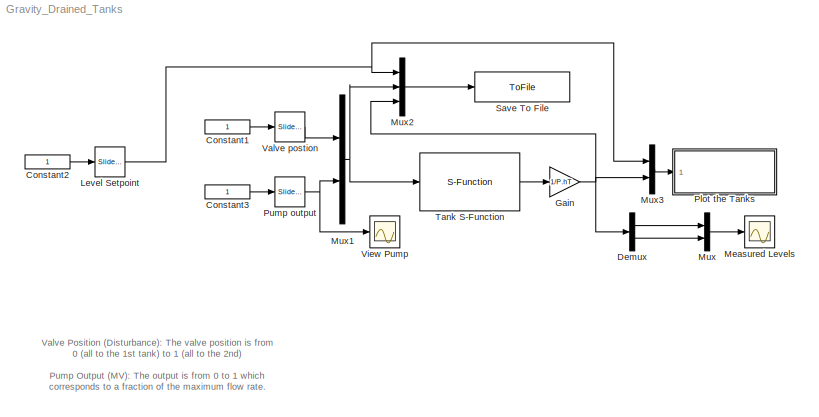
MODEL Gravity_Drained_Tanks
KIND model
CONFIG PreLoadFcn = Initialize
CONFIG StopFcn = Plot_and_save
BLOCK [Constant] Constant1
  SID = 27
BLOCK [Constant] Constant2
  SID = 30
BLOCK [Constant] Constant3
  SID = 3
BLOCK [Demux] Demux
  DisplayOption = bar
  Outputs = 2
  Ports = [1, 2]
  SID = 34
BLOCK [Gain] Gain
  Gain = 1/P.hT
  OutDataTypeStr = Inherit: Inherit via internal rule
  ParamDataTypeStr = Inherit: Inherit via internal rule
  SID = 5
  SaturateOnIntegerOverflow = off
BLOCK [Reference] Level Setpoint  REF=simulink/Math\nOperations/Slider\nGain
  Ports = [1, 1]
  SID = 31
  SourceBlock = simulink/Math\nOperations/Slider\nGain
  SourceType = Slider Gain
  gain = 0.5
  high = 1
  low = 0
BLOCK [Scope] Measured Levels
  Ports = [1]
  SID = 23
  ScopeSpecificationString = C++SS(StrPVP('Location','[188, 390, 512, 629]'),StrPVP('Open','off'),MxPVP('AxesTitles',24,'struct(''axes1'',''%<SignalLabel>'')'),MxPVP('ScopeGraphics',28,'struct(''FigureColor'',''[0.5 0.5 0.5]'',''AxesColor'',''[0 0 0]'',''AxesTickColor'',''[1 1 1]'',''LineColors'',''[1 1 0;1 0 1;0 1 1;1 0 0;0 1 0;0 0 1]'',''LineStyles'',''-|-|-|-|-|-'',''LineWidths'',''[0.5 0.5 0.5 0.5 0.5 0.5]'',''MarkerStyle...<+309ch>
BLOCK [Mux] Mux
  DisplayOption = bar
  Inputs = 2
  Ports = [2, 1]
  SID = 35
BLOCK [Mux] Mux1
  DisplayOption = bar
  Inputs = 2
  Ports = [2, 1]
  SID = 29
BLOCK [Mux] Mux2
  DisplayOption = bar
  Inputs = 3
  Ports = [3, 1]
  SID = 26
BLOCK [Mux] Mux3
  DisplayOption = bar
  Inputs = 2
  Ports = [2, 1]
  SID = 32
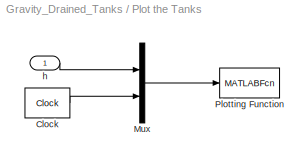
BLOCK [SubSystem] Plot the Tanks
  Ports = [1]
  RequestExecContextInheritance = off
  SID = 8
  Variant = off
BLOCK [Clock] Plot the Tanks/Clock
  DisplayTime = on
  SID = 10
BLOCK [Mux] Plot the Tanks/Mux
  DisplayOption = bar
  Inputs = 2
  Ports = [2, 1]
  SID = 11
BLOCK [MATLABFcn] Plot the Tanks/Plotting Function
  MATLABFcn = PlotTanks(u)
  OutputDimensions = 0
  Ports = [1]
  SID = 12
  SampleTime = .05
BLOCK [Inport] Plot the Tanks/h
  IconDisplay = Port number
  SID = 9
BLOCK [Reference] Pump output  REF=simulink/Math\nOperations/Slider\nGain
  Ports = [1, 1]
  SID = 17
  SourceBlock = simulink/Math\nOperations/Slider\nGain
  SourceType = Slider Gain
  gain = 0
  high = 1
  low = 0
BLOCK [ToFile] Save To File
  Filename = data_manual.mat
  MatrixName = tanks
  Ports = [1]
  SID = 25
  SampleTime = 1
BLOCK [S-Function] Tank S-Function
  EnableBusSupport = off
  FunctionName = tank_dynamics
  Parameters = P
  Ports = [1, 1]
  SFunctionDeploymentMode = off
  SID = 13
BLOCK [Reference] Valve postion  REF=simulink/Math\nOperations/Slider\nGain
  Ports = [1, 1]
  SID = 28
  SourceBlock = simulink/Math\nOperations/Slider\nGain
  SourceType = Slider Gain
  gain = 0
  high = 1
  low = 0
BLOCK [Scope] View Pump
  Ports = [1]
  SID = 22
  ScopeSpecificationString = C++SS(StrPVP('Location','[188, 390, 512, 629]'),StrPVP('Open','off'),MxPVP('AxesTitles',24,'struct(''axes1'',''%<SignalLabel>'')'),MxPVP('ScopeGraphics',28,'struct(''FigureColor'',''[0.5 0.5 0.5]'',''AxesColor'',''[0 0 0]'',''AxesTickColor'',''[1 1 1]'',''LineColors'',''[1 1 0;1 0 1;0 1 1;1 0 0;0 1 0;0 0 1]'',''LineStyles'',''-|-|-|-|-|-'',''LineWidths'',''[0.5 0.5 0.5 0.5 0.5 0.5]'',''MarkerStyle...<+239ch>
ANNOTATION (root): Valve Position (Disturbance): The valve position is from\n0 (all to the 1st tank) to 1 (all to the 2nd)\n\nPump Output (MV): The output is from 0 to 1 which \ncorresponds to a fraction of the maximum flow rate.\n\nChange blue box values (slider).
LINE Constant1:1 -> Valve postion:1
LINE Constant2:1 -> Level Setpoint:1
LINE Constant3:1 -> Pump output:1
LINE Demux:1 -> Mux:1
LINE Demux:2 -> Mux:2
NET Gain:1 -> Demux:1, Mux2:3, Mux3:2
NET Level Setpoint:1 -> Mux2:1, Mux3:1
NET Mux1:1 -> Mux2:2, Tank S-Function:1
LINE Mux2:1 -> Save To File:1
LINE Mux3:1 -> Plot the Tanks:1
LINE Mux:1 -> Measured Levels:1
LINE Plot the Tanks/Clock:1 -> Plot the Tanks/Mux:2
LINE Plot the Tanks/Mux:1 -> Plot the Tanks/Plotting Function:1
LINE Plot the Tanks/h:1 -> Plot the Tanks/Mux:1
NET Pump output:1 -> Mux1:2, View Pump:1
LINE Tank S-Function:1 -> Gain:1
LINE Valve postion:1 -> Mux1:1
note: NET lines group one-source signal fan-out (src -> all destinations, sorted); 1:1 wires keep LINE
